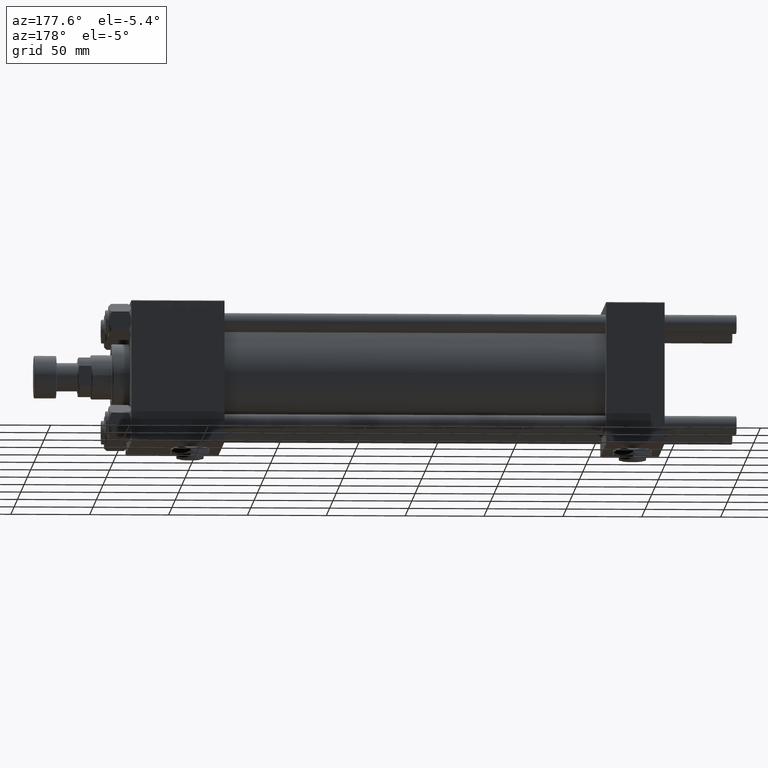
[diagram: clean part render]
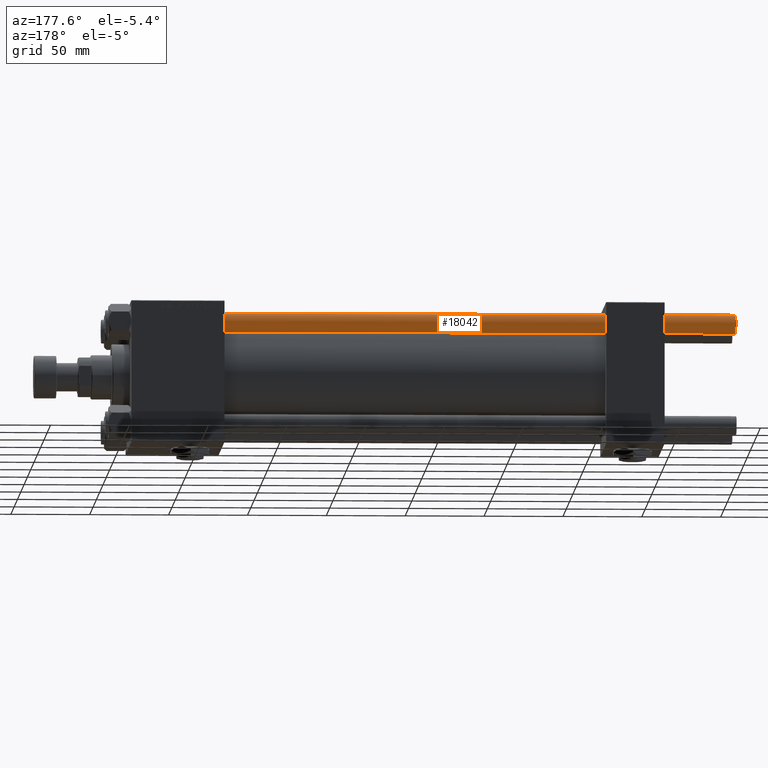
[diagram: same view with one face highlighted and labeled with its STEP entity id]
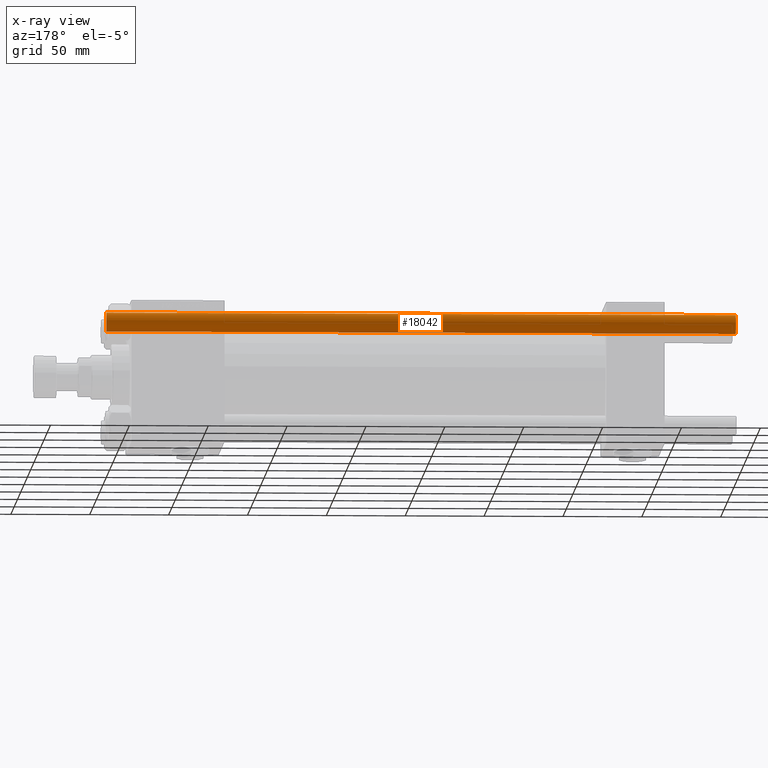
[diagram: x-ray of the same camera — body ghosted, the highlighted face saturated]
A machine part, auxiliary view. The second image highlights one B-rep face of the part: STEP entity #18042.
The next image is the same camera in x-ray: the body ghosted, the highlighted face saturated — about 0% of this face is hidden behind the body in this view.
In plain terms, the highlighted cylindrical surface (edge-blend (fillet) strip) has radius 6 mm, axis along (-1, -0, -0).
Its self-contained STEP definition (entity closure, byte-faithful):
#872 = LINE ( 'NONE', #13290, #4605 ) ;
#2072 = DIRECTION ( 'NONE',  ( -1.000000000000000000, 0.000000000000000000, 0.000000000000000000 ) ) ;
#2597 = ORIENTED_EDGE ( 'NONE', *, *, #19810, .T. ) ;
#4605 = VECTOR ( 'NONE', #42101, 1000.000000000000000 ) ;
#4668 = CARTESIAN_POINT ( 'NONE',  ( 6.000000000000000888, 7.347880794884120722E-16, 0.5000000000000004441 ) ) ;
#5209 = CARTESIAN_POINT ( 'NONE',  ( 0.000000000000000000, 0.000000000000000000, 399.5000000000000000 ) ) ;
#5352 = ORIENTED_EDGE ( 'NONE', *, *, #5799, .F. ) ;
#5799 = EDGE_CURVE ( 'NONE', #42132, #14293, #872, .T. ) ;
#10503 = EDGE_CURVE ( 'NONE', #42132, #23790, #30127, .T. ) ;
#10662 = CARTESIAN_POINT ( 'NONE',  ( 6.000000000000000888, 7.347880794884120722E-16, 400.0000000000000000 ) ) ;
#13290 = CARTESIAN_POINT ( 'NONE',  ( -6.000000000000000888, 0.000000000000000000, 400.0000000000000000 ) ) ;
#14293 = VERTEX_POINT ( 'NONE', #41333 ) ;
#14889 = LINE ( 'NONE', #10662, #36233 ) ;
#14952 = DIRECTION ( 'NONE',  ( 1.000000000000000000, 0.000000000000000000, 0.000000000000000000 ) ) ;
#14989 = CIRCLE ( 'NONE', #49599, 6.000000000000000888 ) ;
#16589 = DIRECTION ( 'NONE',  ( 0.000000000000000000, 0.000000000000000000, -1.000000000000000000 ) ) ;
#18042 = ADVANCED_FACE ( 'NONE', ( #31513 ), #47654, .T. ) ;
#18186 = DIRECTION ( 'NONE',  ( -0.000000000000000000, -0.000000000000000000, -1.000000000000000000 ) ) ;
#18854 = DIRECTION ( 'NONE',  ( -0.000000000000000000, -0.000000000000000000, -1.000000000000000000 ) ) ;
#18911 = EDGE_LOOP ( 'NONE', ( #51944, #2597, #20763, #5352 ) ) ;
#19810 = EDGE_CURVE ( 'NONE', #23790, #38130, #14889, .T. ) ;
#20763 = ORIENTED_EDGE ( 'NONE', *, *, #38393, .T. ) ;
#21850 = AXIS2_PLACEMENT_3D ( 'NONE', #27557, #18186, #2072 ) ;
#23790 = VERTEX_POINT ( 'NONE', #50451 ) ;
#27557 = CARTESIAN_POINT ( 'NONE',  ( 0.000000000000000000, 0.000000000000000000, 400.0000000000000000 ) ) ;
#27603 = AXIS2_PLACEMENT_3D ( 'NONE', #5209, #16589, #44893 ) ;
#30127 = CIRCLE ( 'NONE', #27603, 6.000000000000000888 ) ;
#31513 = FACE_OUTER_BOUND ( 'NONE', #18911, .T. ) ;
#35294 = DIRECTION ( 'NONE',  ( -0.000000000000000000, -0.000000000000000000, 1.000000000000000000 ) ) ;
#36233 = VECTOR ( 'NONE', #18854, 1000.000000000000000 ) ;
#38130 = VERTEX_POINT ( 'NONE', #4668 ) ;
#38393 = EDGE_CURVE ( 'NONE', #38130, #14293, #14989, .T. ) ;
#41333 = CARTESIAN_POINT ( 'NONE',  ( -6.000000000000000888, 0.000000000000000000, 0.5000000000000004441 ) ) ;
#42101 = DIRECTION ( 'NONE',  ( -0.000000000000000000, -0.000000000000000000, -1.000000000000000000 ) ) ;
#42132 = VERTEX_POINT ( 'NONE', #43034 ) ;
#43034 = CARTESIAN_POINT ( 'NONE',  ( -6.000000000000000888, 0.000000000000000000, 399.5000000000000000 ) ) ;
#44893 = DIRECTION ( 'NONE',  ( 1.000000000000000000, 0.000000000000000000, 0.000000000000000000 ) ) ;
#47654 = CYLINDRICAL_SURFACE ( 'NONE', #21850, 6.000000000000000888 ) ;
#49599 = AXIS2_PLACEMENT_3D ( 'NONE', #51186, #35294, #14952 ) ;
#50451 = CARTESIAN_POINT ( 'NONE',  ( 6.000000000000000888, 7.347880794884120722E-16, 399.5000000000000000 ) ) ;
#51186 = CARTESIAN_POINT ( 'NONE',  ( 0.000000000000000000, 0.000000000000000000, 0.5000000000000004441 ) ) ;
#51944 = ORIENTED_EDGE ( 'NONE', *, *, #10503, .T. ) ;